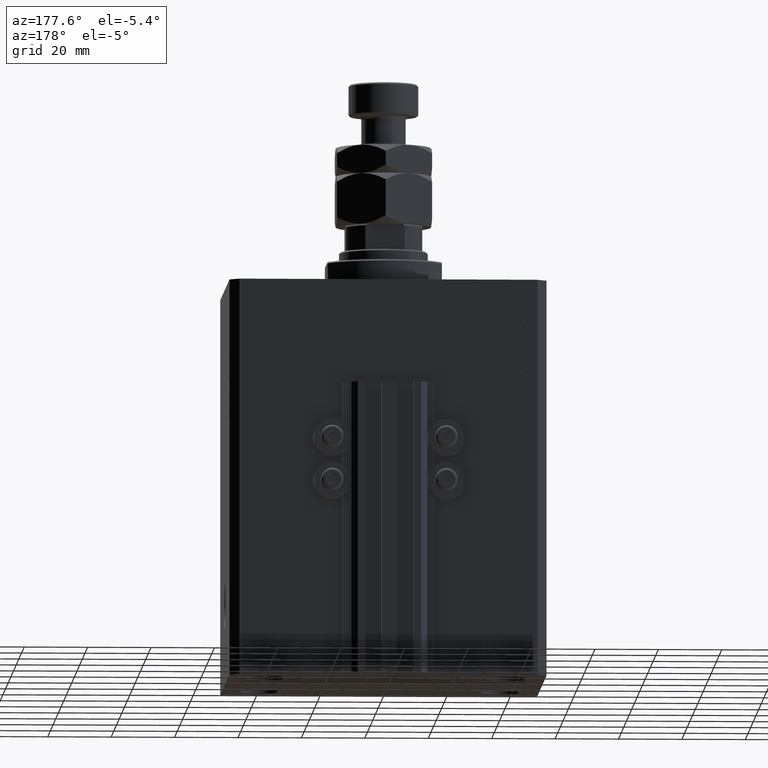
[diagram: clean part render]
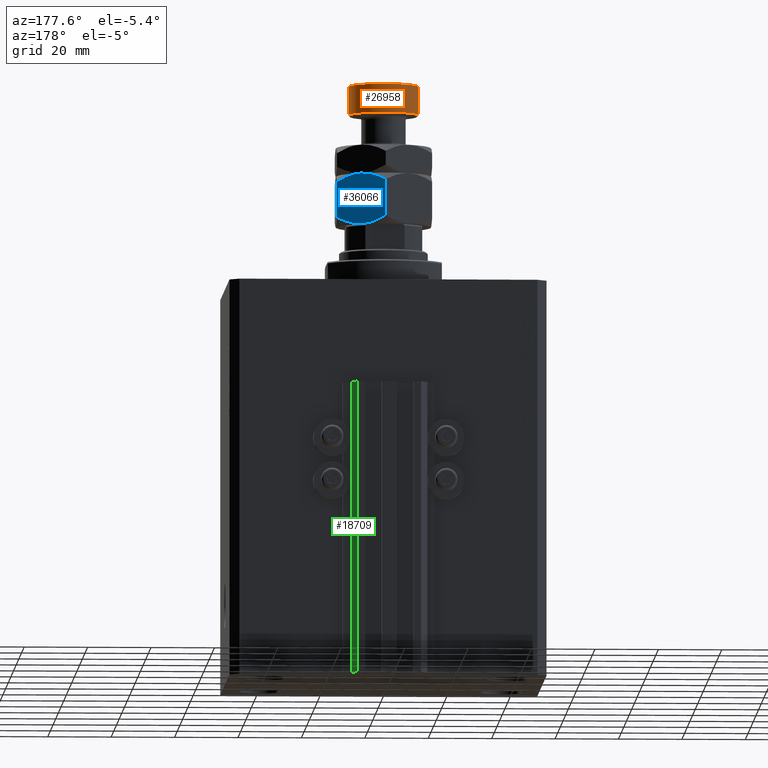
[diagram: same view with three faces highlighted in distinct colors, each labeled with its STEP entity id]
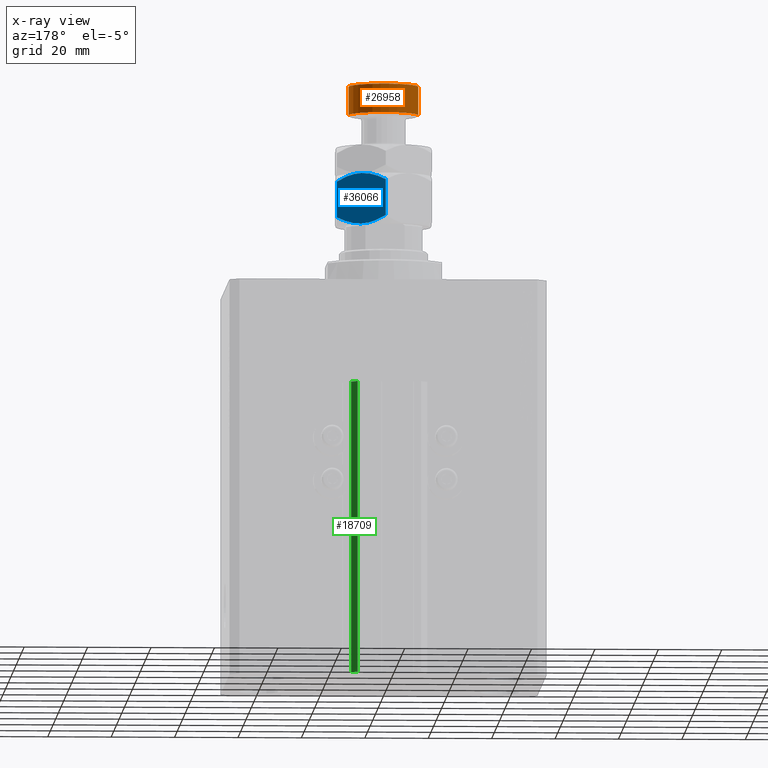
[diagram: x-ray of the same camera — body ghosted, the three highlighted faces saturated]
A machine part, auxiliary view with three faces highlighted in distinct colors.
The next image is the same camera in x-ray (body ghosted, the three faces saturated) — at least one of them is partly hidden behind the body in this view.
Their STEP definitions:

[orange] entity #26958 — the highlighted cylindrical surface (edge-blend (fillet) strip) has radius 11 mm, axis along (-0, -0, -1).
#991 = CARTESIAN_POINT ( 'NONE',  ( 0.000000000000000000, 0.000000000000000000, 44.50000000000001421 ) ) ;
#3948 = CIRCLE ( 'NONE', #48952, 11.00000000000000000 ) ;
#6683 = CIRCLE ( 'NONE', #43013, 11.00000000000000000 ) ;
#12269 = EDGE_CURVE ( 'NONE', #17517, #14789, #3948, .T. ) ;
#12951 = CARTESIAN_POINT ( 'NONE',  ( 11.00000000000000000, 1.347111479062088405E-15, 35.50000000000001421 ) ) ;
#13825 = CARTESIAN_POINT ( 'NONE',  ( 11.00000000000000000, 1.347111479062088405E-15, 45.00000000000000711 ) ) ;
#14071 = DIRECTION ( 'NONE',  ( -0.000000000000000000, -0.000000000000000000, -1.000000000000000000 ) ) ;
#14789 = VERTEX_POINT ( 'NONE', #38895 ) ;
#15473 = LINE ( 'NONE', #34520, #36765 ) ;
#16796 = VECTOR ( 'NONE', #14071, 1000.000000000000000 ) ;
#17517 = VERTEX_POINT ( 'NONE', #12951 ) ;
#18217 = CARTESIAN_POINT ( 'NONE',  ( -11.00000000000000000, 0.000000000000000000, 44.50000000000001421 ) ) ;
#18832 = DIRECTION ( 'NONE',  ( 1.000000000000000000, 0.000000000000000000, 0.000000000000000000 ) ) ;
#19427 = DIRECTION ( 'NONE',  ( -0.000000000000000000, -0.000000000000000000, -1.000000000000000000 ) ) ;
#19697 = VERTEX_POINT ( 'NONE', #38398 ) ;
#19941 = ORIENTED_EDGE ( 'NONE', *, *, #20979, .T. ) ;
#20279 = DIRECTION ( 'NONE',  ( 0.000000000000000000, 0.000000000000000000, -1.000000000000000000 ) ) ;
#20979 = EDGE_CURVE ( 'NONE', #35195, #19697, #6683, .T. ) ;
#25271 = ORIENTED_EDGE ( 'NONE', *, *, #12269, .T. ) ;
#26958 = ADVANCED_FACE ( 'NONE', ( #36701 ), #32982, .T. ) ;
#29689 = AXIS2_PLACEMENT_3D ( 'NONE', #40657, #48789, #33224 ) ;
#30445 = CARTESIAN_POINT ( 'NONE',  ( 0.000000000000000000, 0.000000000000000000, 35.50000000000001421 ) ) ;
#30926 = DIRECTION ( 'NONE',  ( -0.000000000000000000, -0.000000000000000000, 1.000000000000000000 ) ) ;
#32982 = CYLINDRICAL_SURFACE ( 'NONE', #29689, 11.00000000000000000 ) ;
#33224 = DIRECTION ( 'NONE',  ( -1.000000000000000000, 0.000000000000000000, 0.000000000000000000 ) ) ;
#34001 = EDGE_CURVE ( 'NONE', #19697, #17517, #44483, .T. ) ;
#34520 = CARTESIAN_POINT ( 'NONE',  ( -11.00000000000000000, 0.000000000000000000, 45.00000000000000711 ) ) ;
#35195 = VERTEX_POINT ( 'NONE', #18217 ) ;
#36564 = ORIENTED_EDGE ( 'NONE', *, *, #34001, .T. ) ;
#36701 = FACE_OUTER_BOUND ( 'NONE', #40447, .T. ) ;
#36765 = VECTOR ( 'NONE', #19427, 1000.000000000000000 ) ;
#38398 = CARTESIAN_POINT ( 'NONE',  ( 11.00000000000000000, 1.347111479062088405E-15, 44.50000000000001421 ) ) ;
#38895 = CARTESIAN_POINT ( 'NONE',  ( -11.00000000000000000, 0.000000000000000000, 35.50000000000001421 ) ) ;
#40447 = EDGE_LOOP ( 'NONE', ( #19941, #36564, #25271, #44125 ) ) ;
#40657 = CARTESIAN_POINT ( 'NONE',  ( 0.000000000000000000, 0.000000000000000000, 45.00000000000000711 ) ) ;
#43013 = AXIS2_PLACEMENT_3D ( 'NONE', #991, #20279, #43284 ) ;
#43284 = DIRECTION ( 'NONE',  ( 1.000000000000000000, 0.000000000000000000, 0.000000000000000000 ) ) ;
#44125 = ORIENTED_EDGE ( 'NONE', *, *, #44487, .F. ) ;
#44483 = LINE ( 'NONE', #13825, #16796 ) ;
#44487 = EDGE_CURVE ( 'NONE', #35195, #14789, #15473, .T. ) ;
#48789 = DIRECTION ( 'NONE',  ( -0.000000000000000000, -0.000000000000000000, -1.000000000000000000 ) ) ;
#48952 = AXIS2_PLACEMENT_3D ( 'NONE', #30445, #30926, #18832 ) ;

[blue] entity #36066 — the highlighted planar face has unit normal (-0.5, -0.866, 0).
#698 = VERTEX_POINT ( 'NONE', #16923 ) ;
#761 = CARTESIAN_POINT ( 'NONE',  ( 4.247772349543482484, 14.86805556622358893, 0.4475714085130255149 ) ) ;
#1403 = LINE ( 'NONE', #23404, #23341 ) ;
#2322 = CARTESIAN_POINT ( 'NONE',  ( 8.804550678576910983, 12.23719837131869426, -5.031375706690542042E-16 ) ) ;
#2762 = ORIENTED_EDGE ( 'NONE', *, *, #20690, .T. ) ;
#3119 = EDGE_CURVE ( 'NONE', #698, #14214, #32039, .T. ) ;
#4221 = CARTESIAN_POINT ( 'NONE',  ( 1.176108425306640504, 16.64148155974179843, 1.641481559741787111 ) ) ;
#4470 = CARTESIAN_POINT ( 'NONE',  ( 2.378834511187503331, 15.94708733029709080, 1.064486067744004671 ) ) ;
#5290 = CARTESIAN_POINT ( 'NONE',  ( 7.499999999999997335, 12.99038105676658184, 0.000000000000000000 ) ) ;
#5359 = DIRECTION ( 'NONE',  ( -0.000000000000000000, -0.000000000000000000, -1.000000000000000000 ) ) ;
#5683 = PLANE ( 'NONE',  #34239 ) ;
#7142 = CARTESIAN_POINT ( 'NONE',  ( 8.823580389329306328, 12.22621156269319798, 15.94046462602529957 ) ) ;
#7726 = ORIENTED_EDGE ( 'NONE', *, *, #8371, .F. ) ;
#7942 = CARTESIAN_POINT ( 'NONE',  ( 6.176419610670692784, 13.75455055083996214, 0.05953537397470201609 ) ) ;
#8371 = EDGE_CURVE ( 'NONE', #14214, #35449, #42924, .T. ) ;
#8542 = CARTESIAN_POINT ( 'NONE',  ( 3.803331551779305683E-16, 17.32050807568877104, 13.67949192431124317 ) ) ;
#9496 = CARTESIAN_POINT ( 'NONE',  ( 12.61607045183964715, 10.03661640420386902, 1.060479031370879843 ) ) ;
#10926 = B_SPLINE_CURVE_WITH_KNOTS ( 'NONE', 3,
 ( #31165, #4221, #4470, #761, #19557, #7942, #27690, #46274 ),
 .UNSPECIFIED., .F., .F.,
 ( 4, 2, 2, 4 ),
 ( 2.544309033652185071E-07, 0.004488823491893902638, 0.006733108022389172782, 0.008977392552884443794 ),
 .UNSPECIFIED. ) ;
#11174 = ORIENTED_EDGE ( 'NONE', *, *, #26825, .F. ) ;
#11780 = CARTESIAN_POINT ( 'NONE',  ( 6.195449321423087241, 13.74356374221446764, 16.00000000000000355 ) ) ;
#12273 = CARTESIAN_POINT ( 'NONE',  ( 7.621669386706803087E-17, 17.32050807568877104, 2.320508075688761718 ) ) ;
#13448 = CARTESIAN_POINT ( 'NONE',  ( 10.08691881950258740, 11.49682277995505331, 0.2303299219392160591 ) ) ;
#13597 = CARTESIAN_POINT ( 'NONE',  ( 15.00000000000000000, 8.660254037844389075, 16.00000000000000000 ) ) ;
#14214 = VERTEX_POINT ( 'NONE', #16498 ) ;
#15489 = CARTESIAN_POINT ( 'NONE',  ( 3.803331551779305683E-16, 17.32050807568877104, 13.67949192431124317 ) ) ;
#16346 = ORIENTED_EDGE ( 'NONE', *, *, #3119, .F. ) ;
#16498 = CARTESIAN_POINT ( 'NONE',  ( 7.500000000000000000, 12.99038105676657651, 16.00000000000000000 ) ) ;
#16923 = CARTESIAN_POINT ( 'NONE',  ( 15.00000000000000000, 8.660254037844389075, 13.67949192431123784 ) ) ;
#17547 = FACE_OUTER_BOUND ( 'NONE', #35806, .T. ) ;
#18508 = CARTESIAN_POINT ( 'NONE',  ( 12.62116548881249756, 10.03367478323606221, 14.93551393225599710 ) ) ;
#19196 = CARTESIAN_POINT ( 'NONE',  ( 1.174746544192161846, 16.64226784216984356, 14.35773215783022572 ) ) ;
#19229 = CARTESIAN_POINT ( 'NONE',  ( 8.156876182308252510, 12.61113341608665728, 16.00000000000000355 ) ) ;
#19557 = CARTESIAN_POINT ( 'NONE',  ( 4.881674457977373649, 14.50207201327941320, 0.2838026619462936107 ) ) ;
#20090 = LINE ( 'NONE', #32213, #36702 ) ;
#20690 = EDGE_CURVE ( 'NONE', #698, #25100, #20090, .T. ) ;
#21986 = CARTESIAN_POINT ( 'NONE',  ( 10.75222765045651663, 11.11270654730956586, 15.55242859148697576 ) ) ;
#22018 = ORIENTED_EDGE ( 'NONE', *, *, #42609, .F. ) ;
#22222 = CARTESIAN_POINT ( 'NONE',  ( 10.11832554202262457, 11.47869010025374514, 15.71619733805371411 ) ) ;
#22497 = EDGE_CURVE ( 'NONE', #38454, #30499, #10926, .T. ) ;
#23341 = VECTOR ( 'NONE', #5359, 1000.000000000000000 ) ;
#23404 = CARTESIAN_POINT ( 'NONE',  ( 0.000000000000000000, 17.32050807568877104, 16.00000000000000000 ) ) ;
#25100 = VERTEX_POINT ( 'NONE', #31795 ) ;
#26367 = CARTESIAN_POINT ( 'NONE',  ( 7.500000000000000000, 12.99038105676657651, 16.00000000000000000 ) ) ;
#26825 = EDGE_CURVE ( 'NONE', #30499, #25100, #47838, .T. ) ;
#27690 = CARTESIAN_POINT ( 'NONE',  ( 6.843123817691747490, 13.36962869744650639, -3.557538378468061917E-16 ) ) ;
#28670 = DIRECTION ( 'NONE',  ( 0.8660254037844387076, -0.4999999999999997224, 0.000000000000000000 ) ) ;
#29004 = ORIENTED_EDGE ( 'NONE', *, *, #22497, .F. ) ;
#30499 = VERTEX_POINT ( 'NONE', #40557 ) ;
#31165 = CARTESIAN_POINT ( 'NONE',  ( 7.621669386706803087E-17, 17.32050807568877104, 2.320508075688761718 ) ) ;
#31795 = CARTESIAN_POINT ( 'NONE',  ( 15.00000000000000000, 8.660254037844389075, 2.320508075688765715 ) ) ;
#32039 = B_SPLINE_CURVE_WITH_KNOTS ( 'NONE', 3,
 ( #44740, #41044, #18508, #21986, #22222, #7142, #19229, #41278 ),
 .UNSPECIFIED., .F., .F.,
 ( 4, 2, 2, 4 ),
 ( 2.544309033641602453E-07, 0.004488823491893906975, 0.006733108022389177119, 0.008977392552884448998 ),
 .UNSPECIFIED. ) ;
#32213 = CARTESIAN_POINT ( 'NONE',  ( 15.00000000000000000, 8.660254037844389075, 16.00000000000000000 ) ) ;
#33330 = CARTESIAN_POINT ( 'NONE',  ( 4.913081180497409939, 14.48393933357810504, 15.76967007806078946 ) ) ;
#34239 = AXIS2_PLACEMENT_3D ( 'NONE', #13597, #39347, #28670 ) ;
#35449 = VERTEX_POINT ( 'NONE', #8542 ) ;
#35806 = EDGE_LOOP ( 'NONE', ( #29004, #22018, #7726, #16346, #2762, #11174 ) ) ;
#35961 = CARTESIAN_POINT ( 'NONE',  ( 15.00000000000000000, 8.660254037844389075, 2.320508075688765715 ) ) ;
#36066 = ADVANCED_FACE ( 'NONE', ( #17547 ), #5683, .F. ) ;
#36702 = VECTOR ( 'NONE', #42849, 1000.000000000000000 ) ;
#38454 = VERTEX_POINT ( 'NONE', #12273 ) ;
#39347 = DIRECTION ( 'NONE',  ( -0.4999999999999997780, -0.8660254037844388186, 0.000000000000000000 ) ) ;
#40557 = CARTESIAN_POINT ( 'NONE',  ( 7.499999999999997335, 12.99038105676658184, 0.000000000000000000 ) ) ;
#41015 = CARTESIAN_POINT ( 'NONE',  ( 2.383929548160350631, 15.94414570932928576, 14.93952096862913059 ) ) ;
#41044 = CARTESIAN_POINT ( 'NONE',  ( 13.82389157469336283, 9.339280553791368789, 14.35851844025821400 ) ) ;
#41278 = CARTESIAN_POINT ( 'NONE',  ( 7.500000000000000000, 12.99038105676657651, 16.00000000000000000 ) ) ;
#42609 = EDGE_CURVE ( 'NONE', #35449, #38454, #1403, .T. ) ;
#42849 = DIRECTION ( 'NONE',  ( -0.000000000000000000, -0.000000000000000000, -1.000000000000000000 ) ) ;
#42924 = B_SPLINE_CURVE_WITH_KNOTS ( 'NONE', 3,
 ( #26367, #11780, #33330, #41015, #19196, #15489 ),
 .UNSPECIFIED., .F., .F.,
 ( 4, 2, 4 ),
 ( 0.008977392552884448998, 0.01343452311421656706, 0.01789165367554868338 ),
 .UNSPECIFIED. ) ;
#44740 = CARTESIAN_POINT ( 'NONE',  ( 15.00000000000000000, 8.660254037844389075, 13.67949192431123784 ) ) ;
#46274 = CARTESIAN_POINT ( 'NONE',  ( 7.499999999999997335, 12.99038105676658184, 0.000000000000000000 ) ) ;
#46843 = CARTESIAN_POINT ( 'NONE',  ( 13.82525345580783949, 9.338494271363313004, 1.642267842169781833 ) ) ;
#47838 = B_SPLINE_CURVE_WITH_KNOTS ( 'NONE', 3,
 ( #5290, #2322, #13448, #9496, #46843, #35961 ),
 .UNSPECIFIED., .F., .F.,
 ( 4, 2, 4 ),
 ( 0.008977392552884443794, 0.01343452311421656532, 0.01789165367554868685 ),
 .UNSPECIFIED. ) ;

[green] entity #18709 — the highlighted planar face has unit normal (0.7071, 0.7071, 0).
#1284 = LINE ( 'NONE', #12418, #12184 ) ;
#2946 = LINE ( 'NONE', #37084, #4160 ) ;
#4160 = VECTOR ( 'NONE', #13339, 1000.000000000000114 ) ;
#8777 = DIRECTION ( 'NONE',  ( 0.000000000000000000, 0.000000000000000000, 1.000000000000000000 ) ) ;
#9817 = PLANE ( 'NONE',  #23963 ) ;
#11781 = VERTEX_POINT ( 'NONE', #28675 ) ;
#12184 = VECTOR ( 'NONE', #46310, 1000.000000000000000 ) ;
#12418 = CARTESIAN_POINT ( 'NONE',  ( 12.00000000000000000, 43.50000000000002132, -125.0000000000000000 ) ) ;
#12678 = CARTESIAN_POINT ( 'NONE',  ( 12.00000000000000000, 43.50000000000002132, -33.00000000000000000 ) ) ;
#13300 = EDGE_LOOP ( 'NONE', ( #28291, #42682, #14467, #24212 ) ) ;
#13339 = DIRECTION ( 'NONE',  ( -0.7071067811865474617, 0.7071067811865474617, 0.000000000000000000 ) ) ;
#14467 = ORIENTED_EDGE ( 'NONE', *, *, #34051, .T. ) ;
#15570 = EDGE_CURVE ( 'NONE', #23280, #11781, #27738, .T. ) ;
#18709 = ADVANCED_FACE ( 'NONE', ( #45996 ), #9817, .T. ) ;
#19799 = EDGE_CURVE ( 'NONE', #32788, #23280, #1284, .T. ) ;
#20339 = DIRECTION ( 'NONE',  ( -0.7071067811865474617, 0.7071067811865474617, 0.000000000000000000 ) ) ;
#23280 = VERTEX_POINT ( 'NONE', #44090 ) ;
#23358 = LINE ( 'NONE', #24093, #28825 ) ;
#23963 = AXIS2_PLACEMENT_3D ( 'NONE', #27178, #38592, #42300 ) ;
#24093 = CARTESIAN_POINT ( 'NONE',  ( 9.999999999999998224, 45.50000000000002842, -125.0000000000000000 ) ) ;
#24212 = ORIENTED_EDGE ( 'NONE', *, *, #43869, .T. ) ;
#27178 = CARTESIAN_POINT ( 'NONE',  ( 12.00000000000000000, 43.50000000000002132, -125.0000000000000000 ) ) ;
#27738 = LINE ( 'NONE', #12678, #39548 ) ;
#28291 = ORIENTED_EDGE ( 'NONE', *, *, #15570, .F. ) ;
#28675 = CARTESIAN_POINT ( 'NONE',  ( 9.999999999999998224, 45.50000000000002842, -33.00000000000000000 ) ) ;
#28825 = VECTOR ( 'NONE', #8777, 1000.000000000000000 ) ;
#32788 = VERTEX_POINT ( 'NONE', #45855 ) ;
#34051 = EDGE_CURVE ( 'NONE', #32788, #41260, #2946, .T. ) ;
#37084 = CARTESIAN_POINT ( 'NONE',  ( 12.00000000000000000, 43.50000000000002132, -125.0000000000000000 ) ) ;
#38592 = DIRECTION ( 'NONE',  ( 0.7071067811865475727, 0.7071067811865475727, -0.000000000000000000 ) ) ;
#39548 = VECTOR ( 'NONE', #20339, 1000.000000000000114 ) ;
#41260 = VERTEX_POINT ( 'NONE', #47241 ) ;
#42300 = DIRECTION ( 'NONE',  ( -0.7071067811865474617, 0.7071067811865474617, 0.000000000000000000 ) ) ;
#42682 = ORIENTED_EDGE ( 'NONE', *, *, #19799, .F. ) ;
#43869 = EDGE_CURVE ( 'NONE', #41260, #11781, #23358, .T. ) ;
#44090 = CARTESIAN_POINT ( 'NONE',  ( 12.00000000000000000, 43.50000000000002132, -33.00000000000000000 ) ) ;
#45855 = CARTESIAN_POINT ( 'NONE',  ( 12.00000000000000000, 43.50000000000002132, -125.0000000000000000 ) ) ;
#45996 = FACE_OUTER_BOUND ( 'NONE', #13300, .T. ) ;
#46310 = DIRECTION ( 'NONE',  ( 0.000000000000000000, 0.000000000000000000, 1.000000000000000000 ) ) ;
#47241 = CARTESIAN_POINT ( 'NONE',  ( 9.999999999999998224, 45.50000000000002842, -125.0000000000000000 ) ) ;